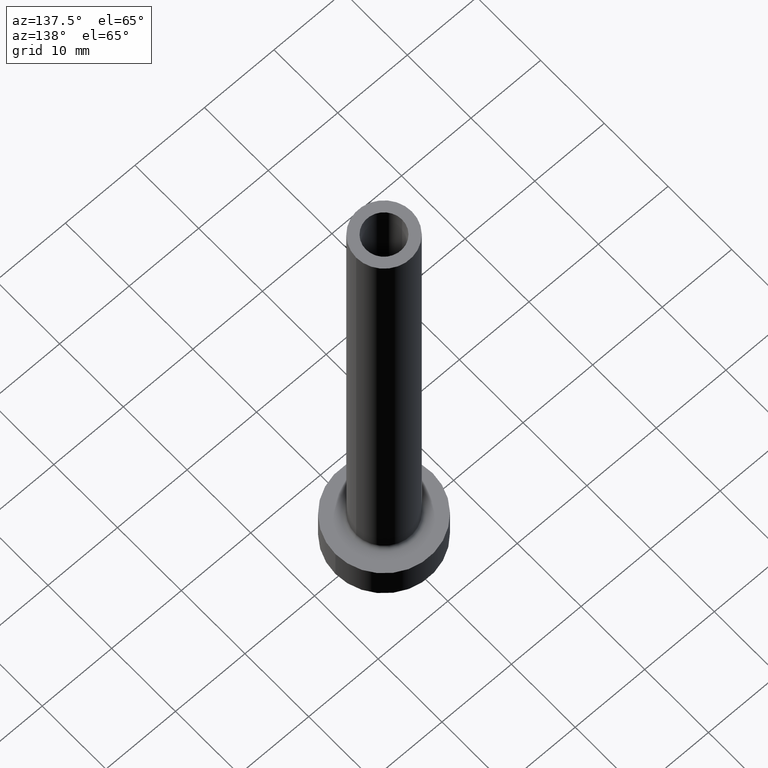
[diagram: clean part render]
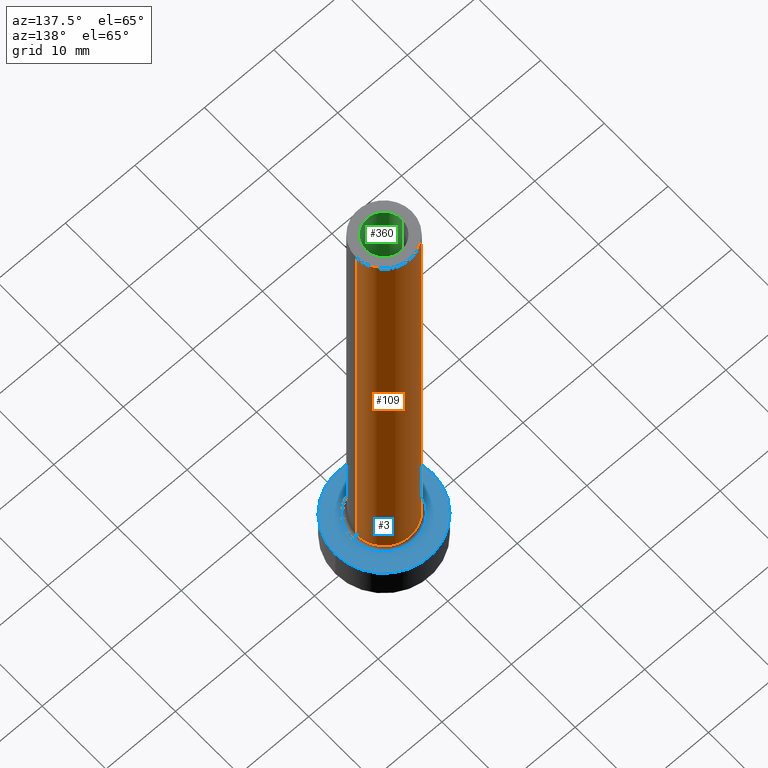
[diagram: same view with three faces highlighted in distinct colors, each labeled with its STEP entity id]
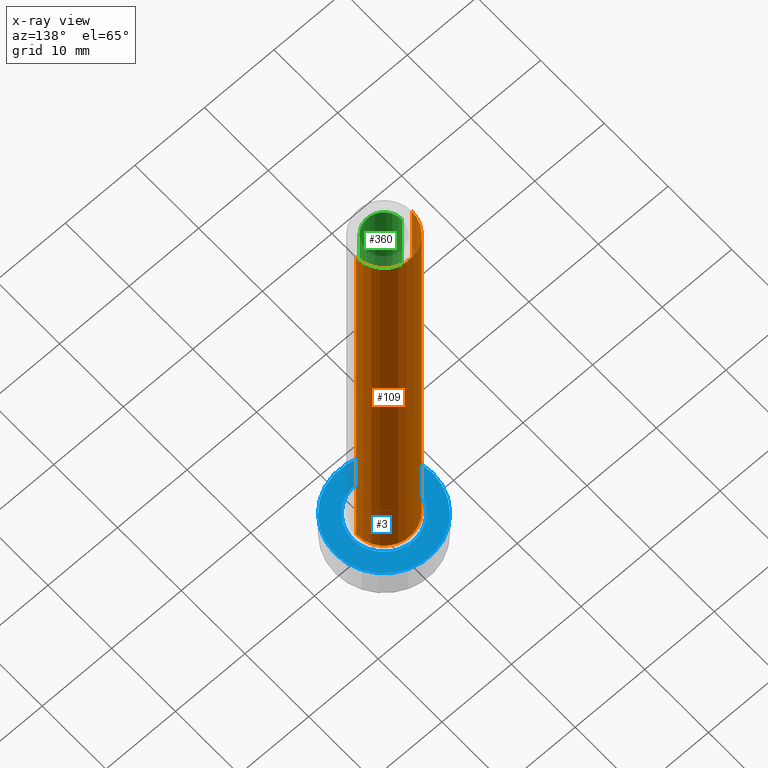
[diagram: x-ray of the same camera — body ghosted, the three highlighted faces saturated]
A machine part, auxiliary view with three faces highlighted in distinct colors.
The next image is the same camera in x-ray (body ghosted, the three faces saturated) — at least one of them is partly hidden behind the body in this view.
Their STEP definitions:

[orange] entity #109 — the highlighted cylindrical surface (partial cylindrical patch) has radius 4 mm, axis along (-0, -0, -1).
#8 = DIRECTION ( 'NONE',  ( 1.000000000000000000, 0.000000000000000000, 0.000000000000000000 ) ) ;
#11 = CIRCLE ( 'NONE', #396, 4.000000000000000000 ) ;
#17 = CARTESIAN_POINT ( 'NONE',  ( -4.000000000000000000, 0.000000000000000000, 75.00000000000001421 ) ) ;
#32 = DIRECTION ( 'NONE',  ( 0.000000000000000000, 0.000000000000000000, 1.000000000000000000 ) ) ;
#37 = CYLINDRICAL_SURFACE ( 'NONE', #446, 4.000000000000000000 ) ;
#47 = VECTOR ( 'NONE', #339, 1000.000000000000000 ) ;
#64 = DIRECTION ( 'NONE',  ( 0.000000000000000000, 0.000000000000000000, 1.000000000000000000 ) ) ;
#76 = CARTESIAN_POINT ( 'NONE',  ( 0.000000000000000000, 0.000000000000000000, 5.500000000000005329 ) ) ;
#84 = FACE_OUTER_BOUND ( 'NONE', #405, .T. ) ;
#86 = CARTESIAN_POINT ( 'NONE',  ( 4.000000000000000000, 4.898587196589412829E-16, 75.00000000000001421 ) ) ;
#100 = ORIENTED_EDGE ( 'NONE', *, *, #429, .T. ) ;
#109 = ADVANCED_FACE ( 'NONE', ( #84 ), #37, .T. ) ;
#116 = DIRECTION ( 'NONE',  ( -1.000000000000000000, 0.000000000000000000, 0.000000000000000000 ) ) ;
#144 = EDGE_CURVE ( 'NONE', #402, #214, #11, .T. ) ;
#185 = LINE ( 'NONE', #432, #271 ) ;
#211 = DIRECTION ( 'NONE',  ( 1.000000000000000000, 0.000000000000000000, 0.000000000000000000 ) ) ;
#214 = VERTEX_POINT ( 'NONE', #452 ) ;
#222 = DIRECTION ( 'NONE',  ( -0.000000000000000000, -0.000000000000000000, -1.000000000000000000 ) ) ;
#226 = AXIS2_PLACEMENT_3D ( 'NONE', #383, #64, #211 ) ;
#238 = LINE ( 'NONE', #277, #47 ) ;
#244 = VERTEX_POINT ( 'NONE', #17 ) ;
#252 = VERTEX_POINT ( 'NONE', #86 ) ;
#255 = CARTESIAN_POINT ( 'NONE',  ( 0.000000000000000000, 0.000000000000000000, 75.00000000000001421 ) ) ;
#271 = VECTOR ( 'NONE', #222, 1000.000000000000000 ) ;
#274 = EDGE_CURVE ( 'NONE', #244, #214, #238, .T. ) ;
#277 = CARTESIAN_POINT ( 'NONE',  ( -4.000000000000000000, 0.000000000000000000, 75.00000000000001421 ) ) ;
#287 = ORIENTED_EDGE ( 'NONE', *, *, #367, .F. ) ;
#311 = ORIENTED_EDGE ( 'NONE', *, *, #274, .F. ) ;
#323 = CARTESIAN_POINT ( 'NONE',  ( 4.000000000000000000, 4.898587196589412829E-16, 5.500000000000005329 ) ) ;
#339 = DIRECTION ( 'NONE',  ( -0.000000000000000000, -0.000000000000000000, -1.000000000000000000 ) ) ;
#347 = CIRCLE ( 'NONE', #226, 4.000000000000000000 ) ;
#367 = EDGE_CURVE ( 'NONE', #252, #244, #347, .T. ) ;
#383 = CARTESIAN_POINT ( 'NONE',  ( 0.000000000000000000, 0.000000000000000000, 75.00000000000001421 ) ) ;
#396 = AXIS2_PLACEMENT_3D ( 'NONE', #76, #32, #8 ) ;
#402 = VERTEX_POINT ( 'NONE', #323 ) ;
#405 = EDGE_LOOP ( 'NONE', ( #287, #100, #447, #311 ) ) ;
#424 = DIRECTION ( 'NONE',  ( -0.000000000000000000, -0.000000000000000000, -1.000000000000000000 ) ) ;
#429 = EDGE_CURVE ( 'NONE', #252, #402, #185, .T. ) ;
#432 = CARTESIAN_POINT ( 'NONE',  ( 4.000000000000000000, 4.898587196589412829E-16, 75.00000000000001421 ) ) ;
#446 = AXIS2_PLACEMENT_3D ( 'NONE', #255, #424, #116 ) ;
#447 = ORIENTED_EDGE ( 'NONE', *, *, #144, .T. ) ;
#452 = CARTESIAN_POINT ( 'NONE',  ( -4.000000000000000000, 0.000000000000000000, 5.500000000000005329 ) ) ;

[blue] entity #3 — the highlighted planar face has unit normal (0, 0, 1).
#3 = ADVANCED_FACE ( 'NONE', ( #131, #60 ), #173, .T. ) ;
#14 = DIRECTION ( 'NONE',  ( 1.000000000000000000, 0.000000000000000000, 0.000000000000000000 ) ) ;
#19 = VERTEX_POINT ( 'NONE', #225 ) ;
#31 = ORIENTED_EDGE ( 'NONE', *, *, #130, .T. ) ;
#44 = ORIENTED_EDGE ( 'NONE', *, *, #67, .T. ) ;
#60 = FACE_OUTER_BOUND ( 'NONE', #272, .T. ) ;
#67 = EDGE_CURVE ( 'NONE', #348, #345, #246, .T. ) ;
#72 = CARTESIAN_POINT ( 'NONE',  ( 0.000000000000000000, 0.000000000000000000, 5.000000000000000000 ) ) ;
#87 = ORIENTED_EDGE ( 'NONE', *, *, #103, .T. ) ;
#92 = DIRECTION ( 'NONE',  ( 0.000000000000000000, 0.000000000000000000, 1.000000000000000000 ) ) ;
#103 = EDGE_CURVE ( 'NONE', #345, #348, #191, .T. ) ;
#105 = ORIENTED_EDGE ( 'NONE', *, *, #204, .T. ) ;
#110 = DIRECTION ( 'NONE',  ( -0.000000000000000000, -0.000000000000000000, -1.000000000000000000 ) ) ;
#124 = CIRCLE ( 'NONE', #167, 7.000000000000000000 ) ;
#127 = CARTESIAN_POINT ( 'NONE',  ( 0.000000000000000000, 0.000000000000000000, 5.000000000000000000 ) ) ;
#128 = DIRECTION ( 'NONE',  ( 0.000000000000000000, 0.000000000000000000, 1.000000000000000000 ) ) ;
#130 = EDGE_CURVE ( 'NONE', #19, #301, #138, .T. ) ;
#131 = FACE_BOUND ( 'NONE', #438, .T. ) ;
#133 = AXIS2_PLACEMENT_3D ( 'NONE', #72, #293, #258 ) ;
#138 = CIRCLE ( 'NONE', #133, 7.000000000000000000 ) ;
#147 = DIRECTION ( 'NONE',  ( 1.000000000000000000, 0.000000000000000000, 0.000000000000000000 ) ) ;
#165 = DIRECTION ( 'NONE',  ( 1.000000000000000000, 0.000000000000000000, -0.000000000000000000 ) ) ;
#167 = AXIS2_PLACEMENT_3D ( 'NONE', #127, #92, #14 ) ;
#173 = PLANE ( 'NONE',  #431 ) ;
#178 = CARTESIAN_POINT ( 'NONE',  ( 0.000000000000000000, 0.000000000000000000, 5.000000000000000000 ) ) ;
#191 = CIRCLE ( 'NONE', #433, 4.500000000000000888 ) ;
#204 = EDGE_CURVE ( 'NONE', #301, #19, #124, .T. ) ;
#225 = CARTESIAN_POINT ( 'NONE',  ( -7.000000000000000000, 0.000000000000000000, 5.000000000000000000 ) ) ;
#246 = CIRCLE ( 'NONE', #269, 4.500000000000000888 ) ;
#253 = DIRECTION ( 'NONE',  ( -0.000000000000000000, -0.000000000000000000, -1.000000000000000000 ) ) ;
#258 = DIRECTION ( 'NONE',  ( 1.000000000000000000, 0.000000000000000000, 0.000000000000000000 ) ) ;
#269 = AXIS2_PLACEMENT_3D ( 'NONE', #178, #110, #147 ) ;
#270 = CARTESIAN_POINT ( 'NONE',  ( 4.500000000000000888, 0.000000000000000000, 5.000000000000002665 ) ) ;
#272 = EDGE_LOOP ( 'NONE', ( #31, #105 ) ) ;
#293 = DIRECTION ( 'NONE',  ( 0.000000000000000000, 0.000000000000000000, 1.000000000000000000 ) ) ;
#301 = VERTEX_POINT ( 'NONE', #312 ) ;
#312 = CARTESIAN_POINT ( 'NONE',  ( 7.000000000000000000, 8.572527594031473190E-16, 5.000000000000000000 ) ) ;
#327 = CARTESIAN_POINT ( 'NONE',  ( 0.000000000000000000, 0.000000000000000000, 5.000000000000000000 ) ) ;
#331 = CARTESIAN_POINT ( 'NONE',  ( -4.500000000000000888, 5.510910596163088569E-16, 5.000000000000002665 ) ) ;
#345 = VERTEX_POINT ( 'NONE', #331 ) ;
#348 = VERTEX_POINT ( 'NONE', #270 ) ;
#423 = DIRECTION ( 'NONE',  ( 1.000000000000000000, 0.000000000000000000, 0.000000000000000000 ) ) ;
#431 = AXIS2_PLACEMENT_3D ( 'NONE', #451, #128, #165 ) ;
#433 = AXIS2_PLACEMENT_3D ( 'NONE', #327, #253, #423 ) ;
#438 = EDGE_LOOP ( 'NONE', ( #44, #87 ) ) ;
#451 = CARTESIAN_POINT ( 'NONE',  ( 0.000000000000000000, 0.000000000000000000, 5.000000000000000000 ) ) ;

[green] entity #360 — the highlighted cylindrical surface (edge-blend (fillet) strip) has radius 2.6 mm, axis along (0, 0, -1).
#18 = EDGE_CURVE ( 'NONE', #26, #166, #73, .T. ) ;
#26 = VERTEX_POINT ( 'NONE', #217 ) ;
#40 = VECTOR ( 'NONE', #409, 1000.000000000000000 ) ;
#59 = EDGE_CURVE ( 'NONE', #382, #26, #254, .T. ) ;
#71 = FACE_OUTER_BOUND ( 'NONE', #309, .T. ) ;
#73 = LINE ( 'NONE', #428, #146 ) ;
#101 = DIRECTION ( 'NONE',  ( 0.000000000000000000, 0.000000000000000000, -1.000000000000000000 ) ) ;
#146 = VECTOR ( 'NONE', #430, 1000.000000000000000 ) ;
#159 = ORIENTED_EDGE ( 'NONE', *, *, #279, .F. ) ;
#166 = VERTEX_POINT ( 'NONE', #459 ) ;
#179 = CYLINDRICAL_SURFACE ( 'NONE', #359, 2.600000000000000089 ) ;
#187 = CIRCLE ( 'NONE', #369, 2.600000000000000089 ) ;
#200 = DIRECTION ( 'NONE',  ( 1.000000000000000000, 0.000000000000000000, 0.000000000000000000 ) ) ;
#209 = CARTESIAN_POINT ( 'NONE',  ( -2.600000000000000089, 0.000000000000000000, 75.00000000000001421 ) ) ;
#217 = CARTESIAN_POINT ( 'NONE',  ( 2.600000000000000089, 3.184081677783117698E-16, 75.00000000000001421 ) ) ;
#232 = CARTESIAN_POINT ( 'NONE',  ( 0.000000000000000000, 0.000000000000000000, 30.00000000000001421 ) ) ;
#247 = DIRECTION ( 'NONE',  ( -1.000000000000000000, 0.000000000000000000, 0.000000000000000000 ) ) ;
#254 = CIRCLE ( 'NONE', #374, 2.600000000000000089 ) ;
#266 = ORIENTED_EDGE ( 'NONE', *, *, #59, .T. ) ;
#275 = LINE ( 'NONE', #209, #40 ) ;
#279 = EDGE_CURVE ( 'NONE', #443, #166, #187, .T. ) ;
#288 = EDGE_CURVE ( 'NONE', #382, #443, #275, .T. ) ;
#305 = ORIENTED_EDGE ( 'NONE', *, *, #18, .T. ) ;
#309 = EDGE_LOOP ( 'NONE', ( #266, #305, #159, #399 ) ) ;
#346 = CARTESIAN_POINT ( 'NONE',  ( 0.000000000000000000, 0.000000000000000000, 75.00000000000001421 ) ) ;
#351 = CARTESIAN_POINT ( 'NONE',  ( -2.600000000000000089, 0.000000000000000000, 75.00000000000001421 ) ) ;
#353 = DIRECTION ( 'NONE',  ( 0.000000000000000000, 0.000000000000000000, 1.000000000000000000 ) ) ;
#358 = CARTESIAN_POINT ( 'NONE',  ( -2.600000000000000089, 0.000000000000000000, 30.00000000000001421 ) ) ;
#359 = AXIS2_PLACEMENT_3D ( 'NONE', #346, #101, #247 ) ;
#360 = ADVANCED_FACE ( 'NONE', ( #71 ), #179, .F. ) ;
#369 = AXIS2_PLACEMENT_3D ( 'NONE', #232, #411, #200 ) ;
#374 = AXIS2_PLACEMENT_3D ( 'NONE', #394, #353, #425 ) ;
#382 = VERTEX_POINT ( 'NONE', #351 ) ;
#394 = CARTESIAN_POINT ( 'NONE',  ( 0.000000000000000000, 0.000000000000000000, 75.00000000000001421 ) ) ;
#399 = ORIENTED_EDGE ( 'NONE', *, *, #288, .F. ) ;
#409 = DIRECTION ( 'NONE',  ( 0.000000000000000000, 0.000000000000000000, -1.000000000000000000 ) ) ;
#411 = DIRECTION ( 'NONE',  ( 0.000000000000000000, 0.000000000000000000, 1.000000000000000000 ) ) ;
#425 = DIRECTION ( 'NONE',  ( 1.000000000000000000, 0.000000000000000000, 0.000000000000000000 ) ) ;
#428 = CARTESIAN_POINT ( 'NONE',  ( 2.600000000000000089, 3.184081677783117698E-16, 75.00000000000001421 ) ) ;
#430 = DIRECTION ( 'NONE',  ( 0.000000000000000000, 0.000000000000000000, -1.000000000000000000 ) ) ;
#443 = VERTEX_POINT ( 'NONE', #358 ) ;
#459 = CARTESIAN_POINT ( 'NONE',  ( 2.600000000000000089, 3.184081677783117698E-16, 30.00000000000001421 ) ) ;